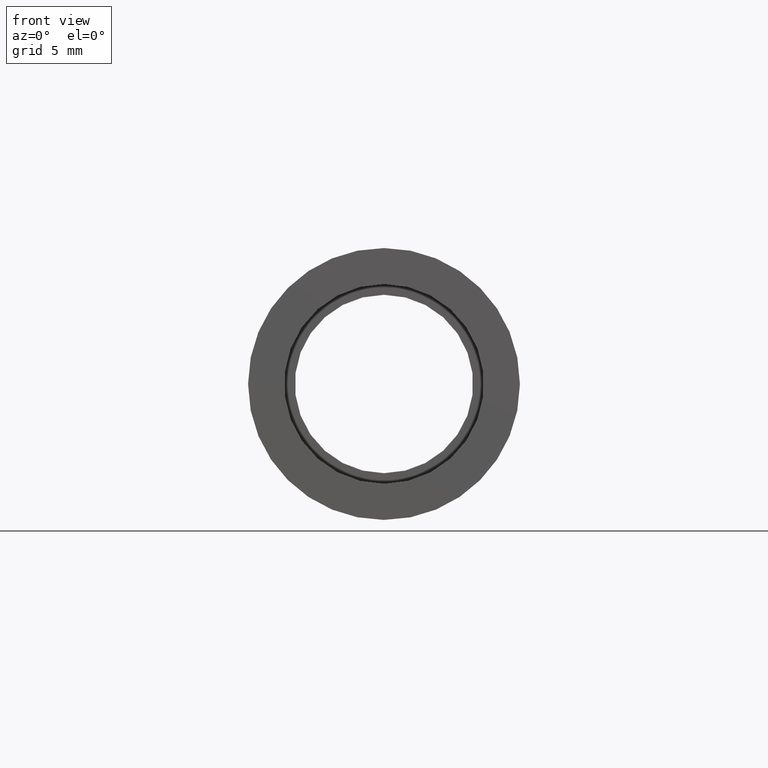
[diagram: clean part render]
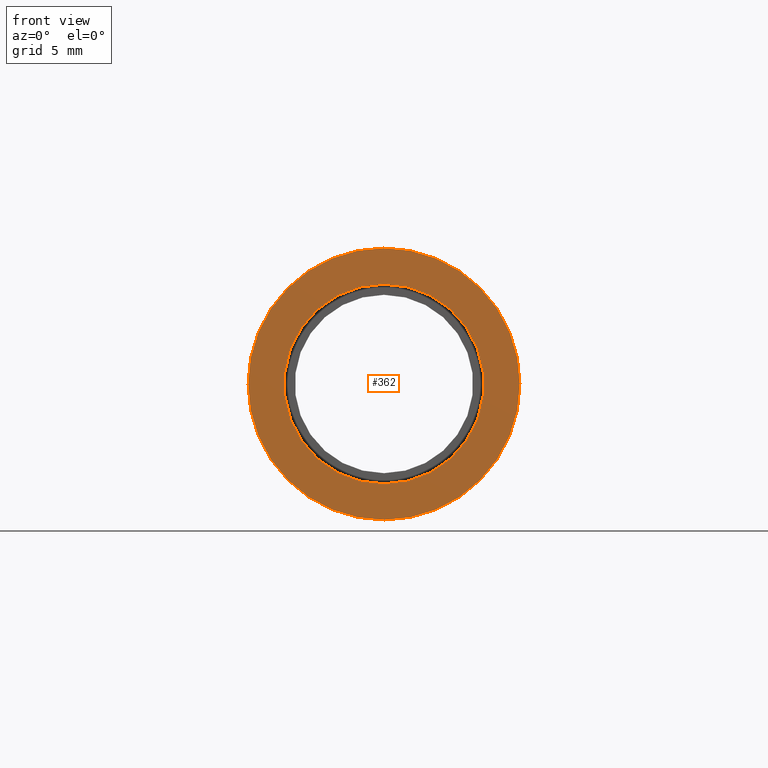
[diagram: same view with one face highlighted and labeled with its STEP entity id]
A machine part, front view. The second image highlights one B-rep face of the part: STEP entity #362.
In plain terms, the highlighted planar face has unit normal (-0, 1, 0).
Its self-contained STEP definition (entity closure, byte-faithful):
#16 = ORIENTED_EDGE ( 'NONE', *, *, #459, .F. ) ;
#24 = DIRECTION ( 'NONE',  ( 0.0000000000000000000, 0.0000000000000000000, 1.000000000000000000 ) ) ;
#33 = DIRECTION ( 'NONE',  ( -0.0000000000000000000, 1.000000000000000000, 0.0000000000000000000 ) ) ;
#43 = VERTEX_POINT ( 'NONE', #101 ) ;
#52 = EDGE_LOOP ( 'NONE', ( #16, #106 ) ) ;
#72 = AXIS2_PLACEMENT_3D ( 'NONE', #460, #170, #609 ) ;
#73 = EDGE_LOOP ( 'NONE', ( #529, #319 ) ) ;
#74 = DIRECTION ( 'NONE',  ( 0.0000000000000000000, 0.0000000000000000000, 1.000000000000000000 ) ) ;
#101 = CARTESIAN_POINT ( 'NONE',  ( 1.166476076187856400E-015, -2.775557561562891400E-014, -9.525000000000019900 ) ) ;
#106 = ORIENTED_EDGE ( 'NONE', *, *, #443, .F. ) ;
#115 = CIRCLE ( 'NONE', #491, 7.000000000000020400 ) ;
#119 = AXIS2_PLACEMENT_3D ( 'NONE', #220, #217, #24 ) ;
#139 = AXIS2_PLACEMENT_3D ( 'NONE', #256, #33, #74 ) ;
#155 = CARTESIAN_POINT ( 'NONE',  ( 0.0000000000000000000, -2.775557561562891400E-014, 7.000000000000020400 ) ) ;
#163 = VERTEX_POINT ( 'NONE', #155 ) ;
#170 = DIRECTION ( 'NONE',  ( -0.0000000000000000000, 1.000000000000000000, -0.0000000000000000000 ) ) ;
#190 = CIRCLE ( 'NONE', #72, 9.525000000000019900 ) ;
#196 = DIRECTION ( 'NONE',  ( 0.0000000000000000000, 0.0000000000000000000, 1.000000000000000000 ) ) ;
#215 = EDGE_CURVE ( 'NONE', #163, #423, #115, .T. ) ;
#217 = DIRECTION ( 'NONE',  ( -0.0000000000000000000, 1.000000000000000000, -0.0000000000000000000 ) ) ;
#220 = CARTESIAN_POINT ( 'NONE',  ( 0.0000000000000000000, -2.775557561562891400E-014, 0.0000000000000000000 ) ) ;
#256 = CARTESIAN_POINT ( 'NONE',  ( 7.000000000000020400, -1.634585625335647100E-014, 0.0000000000000000000 ) ) ;
#265 = DIRECTION ( 'NONE',  ( 0.0000000000000000000, 0.0000000000000000000, 1.000000000000000000 ) ) ;
#319 = ORIENTED_EDGE ( 'NONE', *, *, #509, .T. ) ;
#362 = ADVANCED_FACE ( 'NONE', ( #589, #402 ), #595, .F. ) ;
#399 = VERTEX_POINT ( 'NONE', #456 ) ;
#402 = FACE_BOUND ( 'NONE', #73, .T. ) ;
#409 = CARTESIAN_POINT ( 'NONE',  ( 8.572527594031496900E-016, -2.775557561562891400E-014, -7.000000000000020400 ) ) ;
#412 = CARTESIAN_POINT ( 'NONE',  ( 0.0000000000000000000, -2.775557561562891400E-014, 0.0000000000000000000 ) ) ;
#423 = VERTEX_POINT ( 'NONE', #409 ) ;
#434 = CIRCLE ( 'NONE', #119, 7.000000000000020400 ) ;
#439 = CARTESIAN_POINT ( 'NONE',  ( 0.0000000000000000000, -2.775557561562891400E-014, 0.0000000000000000000 ) ) ;
#443 = EDGE_CURVE ( 'NONE', #43, #399, #190, .T. ) ;
#456 = CARTESIAN_POINT ( 'NONE',  ( 0.0000000000000000000, -2.775557561562891400E-014, 9.525000000000019900 ) ) ;
#459 = EDGE_CURVE ( 'NONE', #399, #43, #596, .T. ) ;
#460 = CARTESIAN_POINT ( 'NONE',  ( 0.0000000000000000000, -2.775557561562891400E-014, 0.0000000000000000000 ) ) ;
#489 = DIRECTION ( 'NONE',  ( -0.0000000000000000000, 1.000000000000000000, -0.0000000000000000000 ) ) ;
#491 = AXIS2_PLACEMENT_3D ( 'NONE', #439, #489, #196 ) ;
#509 = EDGE_CURVE ( 'NONE', #423, #163, #434, .T. ) ;
#529 = ORIENTED_EDGE ( 'NONE', *, *, #215, .T. ) ;
#589 = FACE_OUTER_BOUND ( 'NONE', #52, .T. ) ;
#592 = AXIS2_PLACEMENT_3D ( 'NONE', #412, #606, #265 ) ;
#595 = PLANE ( 'NONE',  #139 ) ;
#596 = CIRCLE ( 'NONE', #592, 9.525000000000019900 ) ;
#606 = DIRECTION ( 'NONE',  ( -0.0000000000000000000, 1.000000000000000000, -0.0000000000000000000 ) ) ;
#609 = DIRECTION ( 'NONE',  ( 0.0000000000000000000, 0.0000000000000000000, 1.000000000000000000 ) ) ;